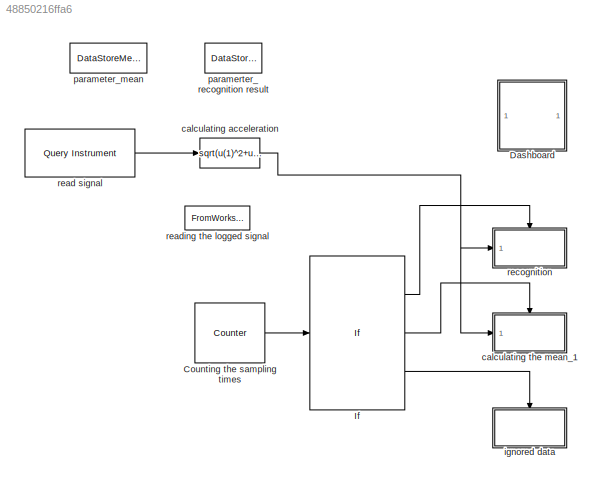
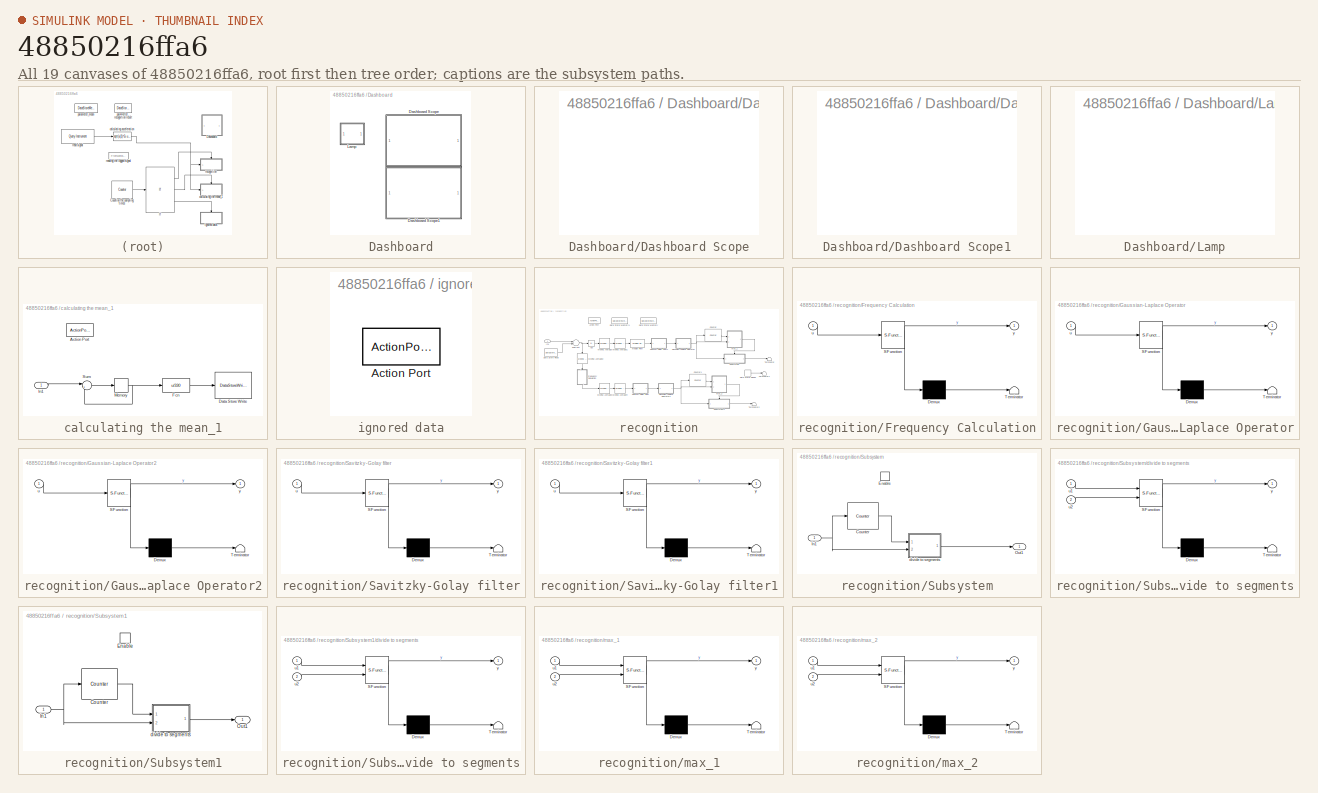
[diagram: thumbnail index - all 19 canvases of the model, root first then tree order]
MODEL slx_48850216ffa6
KIND model
CONFIG AbsTol = auto
CONFIG EnableMultiTasking = off
CONFIG FixedStep = auto
CONFIG MaxStep = auto
CONFIG MinStep = auto
CONFIG RelTol = 1e-3
CONFIG SampleTimeConstraint = Unconstrained
CONFIG Solver = VariableStepAuto
CONFIG SolverName = VariableStepAuto
CONFIG StartTime = 0.0
CONFIG StopTime = inf
BLOCK [Reference] Counting the sampling times  REF=dspswit3/Counter
  Ports = [0, 1]
  SourceBlock = dspswit3/Counter
  SourceProductBaseCode = DS
  SourceProductName = DSP System Toolbox
  SourceType = Counter
BLOCK [SubSystem] Dashboard
  Ports = []
  RequestExecContextInheritance = off
  Variant = off
BLOCK [SubSystem] Dashboard/Dashboard Scope
  DialogController = hmiCreateDDGDialog
  IsWebBlock = on
  MaskHideContents = on
  Ports = []
  RequestExecContextInheritance = off
  Variant = off
BLOCK [SubSystem] Dashboard/Dashboard Scope1
  DialogController = hmiCreateDDGDialog
  IsWebBlock = on
  MaskHideContents = on
  Ports = []
  RequestExecContextInheritance = off
  Variant = off
BLOCK [SubSystem] Dashboard/Lamp
  DialogController = hmiCreateDDGDialog
  IsWebBlock = on
  MaskHideContents = on
  Ports = []
  RequestExecContextInheritance = off
  Variant = off
BLOCK [If] If
  ElseIfExpressions = u1 > 100
  IfExpression = u1 > 430
  Ports = [1, 3]
BLOCK [Fcn] calculating acceleration
  Expr = sqrt(u(1)^2+u(2)^2+u(3)^2)
BLOCK [SubSystem] calculating the mean_1
  Ports = [1, 0, 0, 0, 0, 0, 0, 1]
  RequestExecContextInheritance = off
  TreatAsAtomicUnit = on
  Variant = off
BLOCK [ActionPort] calculating the mean_1/Action Port
  ActionType = elseif
BLOCK [DataStoreWrite] calculating the mean_1/Data Store Write
  DataStoreName = mean_1
  Ports = [1]
BLOCK [Fcn] calculating the mean_1/Fcn
  Expr = u/330
BLOCK [Inport] calculating the mean_1/In1
  IconDisplay = Port number
BLOCK [Memory] calculating the mean_1/Memory
  InheritSampleTime = on
BLOCK [Sum] calculating the mean_1/Sum
  IconShape = round
  InputSameDT = off
  Inputs = |++
  OutDataTypeStr = Inherit: Inherit via internal rule
  Ports = [2, 1]
  SaturateOnIntegerOverflow = off
BLOCK [SubSystem] ignored data
  Ports = [0, 0, 0, 0, 0, 0, 0, 1]
  RequestExecContextInheritance = off
  TreatAsAtomicUnit = on
  Variant = off
BLOCK [ActionPort] ignored data/Action Port
  ActionType = else
BLOCK [DataStoreMemory] paramerter_recognition result
  DataStoreName = Status
  OutDataTypeStr = double
  ReadBeforeWriteMsg = warning
  ShowAdditionalParam = off
  SignalType = real
  WriteAfterReadMsg = warning
  WriteAfterWriteMsg = warning
BLOCK [DataStoreMemory] parameter_mean
  DataStoreName = mean_1
  OutDataTypeStr = double
  ReadBeforeWriteMsg = warning
  ShowAdditionalParam = off
  SignalType = real
  WriteAfterReadMsg = warning
  WriteAfterWriteMsg = warning
BLOCK [Reference] read signal  REF=instrumentlib/Query Instrument
  Ports = [0, 1]
  SourceBlock = instrumentlib/Query Instrument
  SourceProductBaseCode = IC
  SourceProductName = Instrument Control Toolbox
  SourceType = queryinstrument
BLOCK [FromWorkspace] reading the logged signal
  Commented = on
  SampleTime = 0.003
  VariableName = simout
  ZeroCross = on
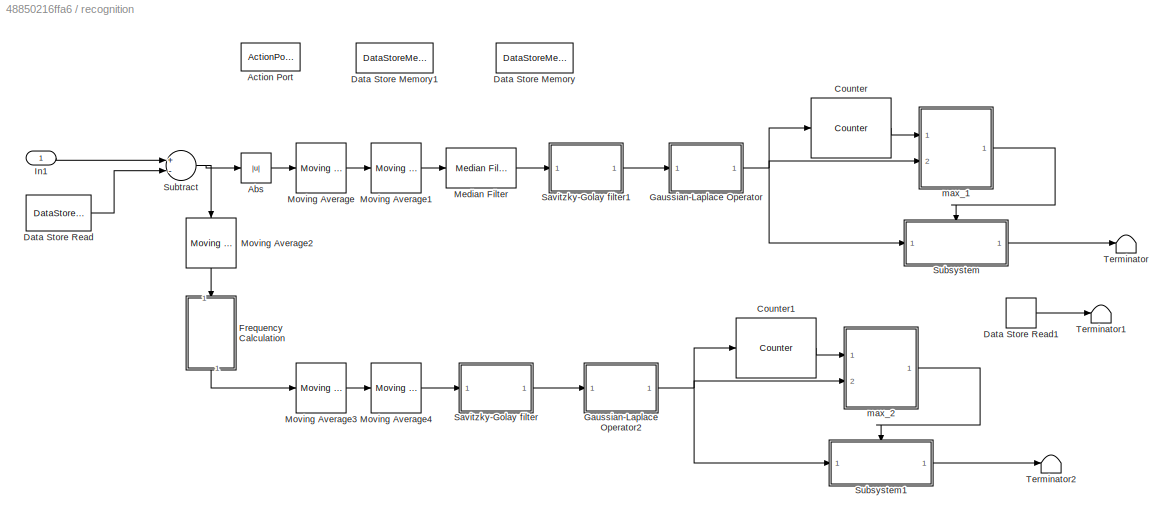
BLOCK [SubSystem] recognition
  Ports = [1, 0, 0, 0, 0, 0, 0, 1]
  RequestExecContextInheritance = off
  TreatAsAtomicUnit = on
  Variant = off
BLOCK [Abs] recognition/Abs
  SaturateOnIntegerOverflow = off
BLOCK [ActionPort] recognition/Action Port
  ActionType = then
  InitializeStates = reset
BLOCK [Reference] recognition/Counter  REF=dspswit3/Counter
  Ports = [1, 1]
  SourceBlock = dspswit3/Counter
  SourceProductBaseCode = DS
  SourceProductName = DSP System Toolbox
  SourceType = Counter
BLOCK [Reference] recognition/Counter1  REF=dspswit3/Counter
  Ports = [1, 1]
  SourceBlock = dspswit3/Counter
  SourceProductBaseCode = DS
  SourceProductName = DSP System Toolbox
  SourceType = Counter
BLOCK [DataStoreMemory] recognition/Data Store Memory
  DataStoreName = max_2
  OutDataTypeStr = double
  ReadBeforeWriteMsg = warning
  ShowAdditionalParam = off
  SignalType = real
  WriteAfterReadMsg = warning
  WriteAfterWriteMsg = warning
BLOCK [DataStoreMemory] recognition/Data Store Memory1
  DataStoreName = max_1
  InitialValue = 0.1
  OutDataTypeStr = double
  ReadBeforeWriteMsg = warning
  ShowAdditionalParam = off
  SignalType = real
  WriteAfterReadMsg = warning
  WriteAfterWriteMsg = warning
BLOCK [DataStoreRead] recognition/Data Store Read
  DataStoreName = mean_1
  Ports = [0, 1]
BLOCK [DataStoreRead] recognition/Data Store Read1
  DataStoreName = Status
  Ports = [0, 1]
BLOCK [SubSystem] recognition/Frequency Calculation
  ErrorFcn = Stateflow.Translate.translate
  PermitHierarchicalResolution = ExplicitOnly
  Ports = [1, 1]
  RequestExecContextInheritance = off
  SFBlockType = MATLAB Function
  TreatAsAtomicUnit = on
  Variant = off
BLOCK [Demux] recognition/Frequency Calculation/ Demux 
  Outputs = 1
  Ports = [1, 1]
BLOCK [S-Function] recognition/Frequency Calculation/ SFunction 
  EnableBusSupport = on
  FunctionName = sf_sfun
  PortCounts = [1 2]
  Ports = [1, 2]
  SFcnIsStateOwnerBlock = off
  SFunctionDeploymentMode = off
  Tag = Stateflow S-Function readacc_final_3 3
BLOCK [Terminator] recognition/Frequency Calculation/ Terminator 
BLOCK [Inport] recognition/Frequency Calculation/u
  IconDisplay = Port number
BLOCK [Outport] recognition/Frequency Calculation/y
  IconDisplay = Port number
BLOCK [SubSystem] recognition/Gaussian-Laplace Operator
  ErrorFcn = Stateflow.Translate.translate
  PermitHierarchicalResolution = ExplicitOnly
  Ports = [1, 1]
  RequestExecContextInheritance = off
  SFBlockType = MATLAB Function
  TreatAsAtomicUnit = on
  Variant = off
BLOCK [Demux] recognition/Gaussian-Laplace Operator/ Demux 
  Outputs = 1
  Ports = [1, 1]
BLOCK [S-Function] recognition/Gaussian-Laplace Operator/ SFunction 
  EnableBusSupport = on
  FunctionName = sf_sfun
  PortCounts = [1 2]
  Ports = [1, 2]
  SFcnIsStateOwnerBlock = off
  SFunctionDeploymentMode = off
  Tag = Stateflow S-Function readacc_final_3 1
BLOCK [Terminator] recognition/Gaussian-Laplace Operator/ Terminator 
BLOCK [Inport] recognition/Gaussian-Laplace Operator/u
  IconDisplay = Port number
BLOCK [Outport] recognition/Gaussian-Laplace Operator/y
  IconDisplay = Port number
BLOCK [SubSystem] recognition/Gaussian-Laplace Operator2
  ErrorFcn = Stateflow.Translate.translate
  PermitHierarchicalResolution = ExplicitOnly
  Ports = [1, 1]
  RequestExecContextInheritance = off
  SFBlockType = MATLAB Function
  TreatAsAtomicUnit = on
  Variant = off
BLOCK [Demux] recognition/Gaussian-Laplace Operator2/ Demux 
  Outputs = 1
  Ports = [1, 1]
BLOCK [S-Function] recognition/Gaussian-Laplace Operator2/ SFunction 
  EnableBusSupport = on
  FunctionName = sf_sfun
  PortCounts = [1 2]
  Ports = [1, 2]
  SFcnIsStateOwnerBlock = off
  SFunctionDeploymentMode = off
  Tag = Stateflow S-Function readacc_final_3 5
BLOCK [Terminator] recognition/Gaussian-Laplace Operator2/ Terminator 
BLOCK [Inport] recognition/Gaussian-Laplace Operator2/u
  IconDisplay = Port number
BLOCK [Outport] recognition/Gaussian-Laplace Operator2/y
  IconDisplay = Port number
BLOCK [Inport] recognition/In1
  IconDisplay = Port number
BLOCK [Reference] recognition/Median Filter  REF=dspstat3/Median
Filter
  Ports = [1, 1]
  SourceBlock = dspstat3/Median\nFilter
  SourceProductBaseCode = DS
  SourceProductName = DSP System Toolbox
  SourceType = dsp.MedianFilter
BLOCK [Reference] recognition/Moving Average  REF=dspstat3/Moving
Average
  Ports = [1, 1]
  SourceBlock = dspstat3/Moving\nAverage
  SourceProductBaseCode = DS
  SourceProductName = DSP System Toolbox
  SourceType = dsp.MovingAverage
BLOCK [Reference] recognition/Moving Average1  REF=dspstat3/Moving
Average
  Ports = [1, 1]
  SourceBlock = dspstat3/Moving\nAverage
  SourceProductBaseCode = DS
  SourceProductName = DSP System Toolbox
  SourceType = dsp.MovingAverage
BLOCK [Reference] recognition/Moving Average2  REF=dspstat3/Moving
Average
  Ports = [1, 1]
  SourceBlock = dspstat3/Moving\nAverage
  SourceProductBaseCode = DS
  SourceProductName = DSP System Toolbox
  SourceType = dsp.MovingAverage
BLOCK [Reference] recognition/Moving Average3  REF=dspstat3/Moving
Average
  Ports = [1, 1]
  SourceBlock = dspstat3/Moving\nAverage
  SourceProductBaseCode = DS
  SourceProductName = DSP System Toolbox
  SourceType = dsp.MovingAverage
BLOCK [Reference] recognition/Moving Average4  REF=dspstat3/Moving
Average
  Ports = [1, 1]
  SourceBlock = dspstat3/Moving\nAverage
  SourceProductBaseCode = DS
  SourceProductName = DSP System Toolbox
  SourceType = dsp.MovingAverage
BLOCK [SubSystem] recognition/Savitzky-Golay filter
  Commented = through
  ErrorFcn = Stateflow.Translate.translate
  PermitHierarchicalResolution = ExplicitOnly
  Ports = [1, 1]
  RequestExecContextInheritance = off
  SFBlockType = MATLAB Function
  TreatAsAtomicUnit = on
  Variant = off
BLOCK [Demux] recognition/Savitzky-Golay filter/ Demux 
  Outputs = 1
  Ports = [1, 1]
BLOCK [S-Function] recognition/Savitzky-Golay filter/ SFunction 
  EnableBusSupport = on
  FunctionName = sf_sfun
  PortCounts = [1 2]
  Ports = [1, 2]
  SFcnIsStateOwnerBlock = off
  SFunctionDeploymentMode = off
  Tag = Stateflow S-Function readacc_final_3 8
BLOCK [Terminator] recognition/Savitzky-Golay filter/ Terminator 
BLOCK [Inport] recognition/Savitzky-Golay filter/u
  IconDisplay = Port number
BLOCK [Outport] recognition/Savitzky-Golay filter/y
  IconDisplay = Port number
BLOCK [SubSystem] recognition/Savitzky-Golay filter1
  Commented = through
  ErrorFcn = Stateflow.Translate.translate
  PermitHierarchicalResolution = ExplicitOnly
  Ports = [1, 1]
  RequestExecContextInheritance = off
  SFBlockType = MATLAB Function
  TreatAsAtomicUnit = on
  Variant = off
BLOCK [Demux] recognition/Savitzky-Golay filter1/ Demux 
  Outputs = 1
  Ports = [1, 1]
BLOCK [S-Function] recognition/Savitzky-Golay filter1/ SFunction 
  EnableBusSupport = on
  FunctionName = sf_sfun
  PortCounts = [1 2]
  Ports = [1, 2]
  SFcnIsStateOwnerBlock = off
  SFunctionDeploymentMode = off
  Tag = Stateflow S-Function readacc_final_3 9
BLOCK [Terminator] recognition/Savitzky-Golay filter1/ Terminator 
BLOCK [Inport] recognition/Savitzky-Golay filter1/u
  IconDisplay = Port number
BLOCK [Outport] recognition/Savitzky-Golay filter1/y
  IconDisplay = Port number
BLOCK [SubSystem] recognition/Subsystem
  Ports = [1, 1, 1]
  RequestExecContextInheritance = off
  Variant = off
BLOCK [Reference] recognition/Subsystem/Counter  REF=dspswit3/Counter
  Ports = [1, 1]
  SourceBlock = dspswit3/Counter
  SourceProductBaseCode = DS
  SourceProductName = DSP System Toolbox
  SourceType = Counter
BLOCK [EnablePort] recognition/Subsystem/Enable
  Ports = []
BLOCK [Inport] recognition/Subsystem/In1
  IconDisplay = Port number
BLOCK [Outport] recognition/Subsystem/Out1
  IconDisplay = Port number
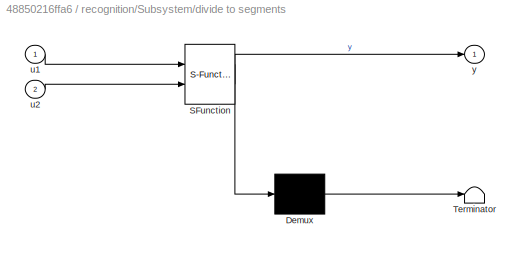
BLOCK [SubSystem] recognition/Subsystem/divide to segments
  ErrorFcn = Stateflow.Translate.translate
  PermitHierarchicalResolution = ExplicitOnly
  Ports = [2, 1]
  RequestExecContextInheritance = off
  SFBlockType = MATLAB Function
  TreatAsAtomicUnit = on
  Variant = off
BLOCK [Demux] recognition/Subsystem/divide to segments/ Demux 
  Outputs = 1
  Ports = [1, 1]
BLOCK [S-Function] recognition/Subsystem/divide to segments/ SFunction 
  EnableBusSupport = on
  FunctionName = sf_sfun
  PortCounts = [2 2]
  Ports = [2, 2]
  SFcnIsStateOwnerBlock = off
  SFunctionDeploymentMode = off
  Tag = Stateflow S-Function readacc_final_3 4
BLOCK [Terminator] recognition/Subsystem/divide to segments/ Terminator 
BLOCK [Inport] recognition/Subsystem/divide to segments/u1
  IconDisplay = Port number
BLOCK [Inport] recognition/Subsystem/divide to segments/u2
  IconDisplay = Port number
  Port = 2
BLOCK [Outport] recognition/Subsystem/divide to segments/y
  IconDisplay = Port number
BLOCK [SubSystem] recognition/Subsystem1
  Ports = [1, 1, 1]
  RequestExecContextInheritance = off
  Variant = off
BLOCK [Reference] recognition/Subsystem1/Counter  REF=dspswit3/Counter
  Ports = [1, 1]
  SourceBlock = dspswit3/Counter
  SourceProductBaseCode = DS
  SourceProductName = DSP System Toolbox
  SourceType = Counter
BLOCK [EnablePort] recognition/Subsystem1/Enable
  Ports = []
BLOCK [Inport] recognition/Subsystem1/In1
  IconDisplay = Port number
BLOCK [Outport] recognition/Subsystem1/Out1
  IconDisplay = Port number
BLOCK [SubSystem] recognition/Subsystem1/divide to segments
  ErrorFcn = Stateflow.Translate.translate
  PermitHierarchicalResolution = ExplicitOnly
  Ports = [2, 1]
  RequestExecContextInheritance = off
  SFBlockType = MATLAB Function
  TreatAsAtomicUnit = on
  Variant = off
BLOCK [Demux] recognition/Subsystem1/divide to segments/ Demux 
  Outputs = 1
  Ports = [1, 1]
BLOCK [S-Function] recognition/Subsystem1/divide to segments/ SFunction 
  EnableBusSupport = on
  FunctionName = sf_sfun
  PortCounts = [2 2]
  Ports = [2, 2]
  SFcnIsStateOwnerBlock = off
  SFunctionDeploymentMode = off
  Tag = Stateflow S-Function readacc_final_3 7
BLOCK [Terminator] recognition/Subsystem1/divide to segments/ Terminator 
BLOCK [Inport] recognition/Subsystem1/divide to segments/u1
  IconDisplay = Port number
BLOCK [Inport] recognition/Subsystem1/divide to segments/u2
  IconDisplay = Port number
  Port = 2
BLOCK [Outport] recognition/Subsystem1/divide to segments/y
  IconDisplay = Port number
BLOCK [Sum] recognition/Subtract
  InputSameDT = off
  Inputs = +-
  OutDataTypeStr = Inherit: Inherit via internal rule
  Ports = [2, 1]
  SaturateOnIntegerOverflow = off
BLOCK [Terminator] recognition/Terminator
BLOCK [Terminator] recognition/Terminator1
BLOCK [Terminator] recognition/Terminator2
BLOCK [SubSystem] recognition/max_1
  ErrorFcn = Stateflow.Translate.translate
  PermitHierarchicalResolution = ExplicitOnly
  Ports = [2, 1]
  RequestExecContextInheritance = off
  SFBlockType = MATLAB Function
  TreatAsAtomicUnit = on
  Variant = off
BLOCK [Demux] recognition/max_1/ Demux 
  Outputs = 1
  Ports = [1, 1]
BLOCK [S-Function] recognition/max_1/ SFunction 
  EnableBusSupport = on
  FunctionName = sf_sfun
  PortCounts = [2 2]
  Ports = [2, 2]
  SFcnIsStateOwnerBlock = off
  SFunctionDeploymentMode = off
  Tag = Stateflow S-Function readacc_final_3 2
BLOCK [Terminator] recognition/max_1/ Terminator 
BLOCK [Inport] recognition/max_1/u1
  IconDisplay = Port number
BLOCK [Inport] recognition/max_1/u2
  IconDisplay = Port number
  Port = 2
BLOCK [Outport] recognition/max_1/y
  IconDisplay = Port number
BLOCK [SubSystem] recognition/max_2
  ErrorFcn = Stateflow.Translate.translate
  PermitHierarchicalResolution = ExplicitOnly
  Ports = [2, 1]
  RequestExecContextInheritance = off
  SFBlockType = MATLAB Function
  TreatAsAtomicUnit = on
  Variant = off
BLOCK [Demux] recognition/max_2/ Demux 
  Outputs = 1
  Ports = [1, 1]
BLOCK [S-Function] recognition/max_2/ SFunction 
  EnableBusSupport = on
  FunctionName = sf_sfun
  PortCounts = [2 2]
  Ports = [2, 2]
  SFcnIsStateOwnerBlock = off
  SFunctionDeploymentMode = off
  Tag = Stateflow S-Function readacc_final_3 6
BLOCK [Terminator] recognition/max_2/ Terminator 
BLOCK [Inport] recognition/max_2/u1
  IconDisplay = Port number
BLOCK [Inport] recognition/max_2/u2
  IconDisplay = Port number
  Port = 2
BLOCK [Outport] recognition/max_2/y
  IconDisplay = Port number
LINE Counting the sampling times:1 -> If:1
LINE If:1 -> recognition:ifaction
LINE If:2 -> calculating the mean_1:ifaction
LINE If:3 -> ignored data:ifaction
NET calculating acceleration:1 -> calculating the mean_1:1, recognition:1
LINE calculating the mean_1/Fcn:1 -> calculating the mean_1/Data Store Write:1
LINE calculating the mean_1/In1:1 -> calculating the mean_1/Sum:1
NET calculating the mean_1/Memory:1 -> calculating the mean_1/Fcn:1, calculating the mean_1/Sum:2
LINE calculating the mean_1/Sum:1 -> calculating the mean_1/Memory:1
LINE read signal:1 -> calculating acceleration:1
LINE recognition/Abs:1 -> recognition/Moving Average:1
LINE recognition/Counter1:1 -> recognition/max_2:1
LINE recognition/Counter:1 -> recognition/max_1:1
LINE recognition/Data Store Read1:1 -> recognition/Terminator1:1
LINE recognition/Data Store Read:1 -> recognition/Subtract:2
LINE recognition/Frequency Calculation:1 -> recognition/Moving Average3:1
NET recognition/Gaussian-Laplace Operator2:1 -> recognition/Counter1:1, recognition/Subsystem1:1, recognition/max_2:2
NET recognition/Gaussian-Laplace Operator:1 -> recognition/Counter:1, recognition/Subsystem:1, recognition/max_1:2
LINE recognition/In1:1 -> recognition/Subtract:1
LINE recognition/Median Filter:1 -> recognition/Savitzky-Golay filter1:1
LINE recognition/Moving Average1:1 -> recognition/Median Filter:1
LINE recognition/Moving Average2:1 -> recognition/Frequency Calculation:1
LINE recognition/Moving Average3:1 -> recognition/Moving Average4:1
LINE recognition/Moving Average4:1 -> recognition/Savitzky-Golay filter:1
LINE recognition/Moving Average:1 -> recognition/Moving Average1:1
LINE recognition/Savitzky-Golay filter1:1 -> recognition/Gaussian-Laplace Operator:1
LINE recognition/Savitzky-Golay filter:1 -> recognition/Gaussian-Laplace Operator2:1
LINE recognition/Subsystem/Counter:1 -> recognition/Subsystem/divide to segments:1
NET recognition/Subsystem/In1:1 -> recognition/Subsystem/Counter:1, recognition/Subsystem/divide to segments:2
LINE recognition/Subsystem/divide to segments:1 -> recognition/Subsystem/Out1:1
LINE recognition/Subsystem1/Counter:1 -> recognition/Subsystem1/divide to segments:1
NET recognition/Subsystem1/In1:1 -> recognition/Subsystem1/Counter:1, recognition/Subsystem1/divide to segments:2
LINE recognition/Subsystem1/divide to segments:1 -> recognition/Subsystem1/Out1:1
LINE recognition/Subsystem1:1 -> recognition/Terminator2:1
LINE recognition/Subsystem:1 -> recognition/Terminator:1
NET recognition/Subtract:1 -> recognition/Abs:1, recognition/Moving Average2:1
LINE recognition/max_1:1 -> recognition/Subsystem:enable
LINE recognition/max_2:1 -> recognition/Subsystem1:enable
note: NET lines group one-source signal fan-out (src -> all destinations, sorted); 1:1 wires keep LINE
CHART recognition/Gaussian-Laplace Operator states=1 transitions=1
  STATE_LABEL 'eML_blk_kernel()'
  STATE_LABEL 'SCRIPT:\nfunction y = fcn(u)\n\npersistent len_1 counter_1 ;\nif isempty(len_1)\n    len_1 = zeros(1,100);\n    counter_1 = 0;\nend\ncounter_1 = counter_1 +1;\nlen_1 = [len_1(2:100), u];\nif counter_1 >361\n    y = (3*u - 2*len_1(50)-len_1(1))^2;\nelse\n    y = 0;\nend\n'
CHART recognition/max_1 states=1 transitions=1
  STATE_LABEL 'eML_blk_kernel()'
  STATE_LABEL 'SCRIPT:\nfunction y = fcn(u1, u2)\n\nglobal max_1\nif u1<600\n    if u2>max_1\n        max_1 = u2;\n    end\n    y = 0;\nelse\n    y = 1;\nend\n\n'
CHART recognition/Frequency Calculation states=1 transitions=1
  STATE_LABEL 'eML_blk_kernel()'
  STATE_LABEL 'SCRIPT:\nfunction y = fcn(u)\n\npersistent sign counter c d timepoint fre;\n\nif isempty(sign)\n    sign = 1;\n    counter = 0;\n    c = 0;\n    d = [u u u];\n    timepoint = zeros(1,3);\n    fre = 0;\nend\nd = [d(2:3) u];\nif (d(2)*sign) <= 0 && (d(3)*sign) <= 0\n    sign = -sign;\n    c = c +1;\n    timepoint(c) = counter-1 + d(1)/(d(1)-d(2));\n    if c == 3\n        fre = 330/(timepoint(3)-timepoint(1));\n        ...<+99ch>'
CHART recognition/Subsystem/divide to segments states=1 transitions=1
  STATE_LABEL 'eML_blk_kernel()'
  STATE_LABEL 'SCRIPT:\nfunction y = fcn(u1,u2)\n\nglobal max_1 Status\n\npersistent local_max\nif isempty(local_max)\n    local_max=[0.1 0.1];\nend\nif u1==250\n    local_max(1) = local_max(2);\n    local_max(2) = 0;\nend \n\nif u2>local_max(2)\n    local_max(2) = u2;\nend\n\nif (3.77*max_1)<local_max(1)\n    y = 20;\n    Status = 1;\nelseif local_max(1)>max_1\n    max_1 = 0.5*(max_1+local_max(1));\n    y=5;\nelse\n    y=5;\nend\n    \n\n\n'
CHART recognition/Gaussian-Laplace Operator2 states=1 transitions=1
  STATE_LABEL 'eML_blk_kernel()'
  STATE_LABEL 'SCRIPT:\nfunction y = fcn(u)\n\npersistent len_1 counter_1 ;\nif isempty(len_1)\n    len_1 = zeros(1,100);\n    counter_1 = 0;\nend\ncounter_1 = counter_1 +1;\nlen_1 = [len_1(2:100), u];\nif counter_1 >361\n    y = (3*u - 2*len_1(50)-len_1(1))^2;\nelse\n    y = 0;\nend\n'
CHART recognition/max_2 states=1 transitions=1
  STATE_LABEL 'eML_blk_kernel()'
  STATE_LABEL 'SCRIPT:\nfunction y = fcn(u1, u2)\n\nglobal max_2\nif u1<600\n    if u2>max_2\n        max_2 = u2;\n    end\n    y = 0;\nelse\n    y = 1;\nend\n\n'
CHART recognition/Subsystem1/divide to segments states=1 transitions=1
  STATE_LABEL 'eML_blk_kernel()'
  STATE_LABEL 'SCRIPT:\nfunction y = fcn(u1,u2)\n\nglobal max_2 Status\n\npersistent local_max\nif isempty(local_max)\n    local_max=[0.1 0.1];\nend\nif u1==250\n    local_max(1) = local_max(2);\n    local_max(2) = 0;\nend \n\nif u2>local_max(2)\n    local_max(2) = u2;\nend\n\nif (5.99*max_2)<local_max(1)\n    y = 20;\n    Status = 1;\nelseif local_max(1)>max_2\n    max_2 = 0.5*(max_2+local_max(1));\n    y=5;\nelse\n    y=5;\nend\n    \n\n\n'
CHART recognition/Savitzky-Golay filter states=1 transitions=1
  STATE_LABEL 'eML_blk_kernel()'
  STATE_LABEL 'SCRIPT:\nfunction y = fcn(u)\n\npersistent x;\nif isempty(x)\n    x=zeros(1,100);\nend\nx=[x(2:100),u];\nm=5;\nn=length(x);\n  a=x;\nfor k=1: m\n b(1) = (69*a(1) +4*(a(2) +a(4)) -6*a(3) -a(5)) /70;\n b(2) = (2* (a(1) +a(5)) +27*a(2) +12*a(3) -8*a(4)) /35;\n for j=3:n-2\n   b (j) = (-3*(a(j-2) +a(j+2)) +12*(a(j-1) +a(j+1)) +17*a(j)) /35;\n end\n b (n-1) = (2*(a(n) +a(n-4)) +27*a(n-1) +12*a(n-2) -8*a(n-3)) /35;\n b (...<+78ch>'
CHART recognition/Savitzky-Golay filter1 states=1 transitions=1
  STATE_LABEL 'eML_blk_kernel()'
  STATE_LABEL 'SCRIPT:\nfunction y = fcn(u)\n\npersistent x;\nif isempty(x)\n    x=zeros(1,100);\nend\nx=[x(2:100),u];\nm=5;\nn=length(x);\n  a=x;\nfor k=1: m\n b(1) = (69*a(1) +4*(a(2) +a(4)) -6*a(3) -a(5)) /70;\n b(2) = (2* (a(1) +a(5)) +27*a(2) +12*a(3) -8*a(4)) /35;\n for j=3:n-2\n   b (j) = (-3*(a(j-2) +a(j+2)) +12*(a(j-1) +a(j+1)) +17*a(j)) /35;\n end\n b (n-1) = (2*(a(n) +a(n-4)) +27*a(n-1) +12*a(n-2) -8*a(n-3)) /35;\n b (...<+78ch>'
